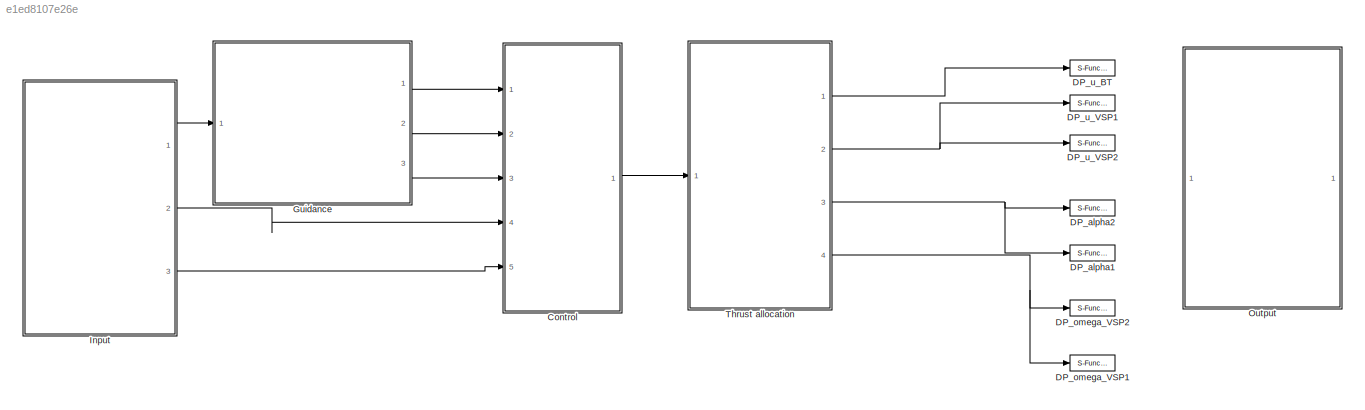
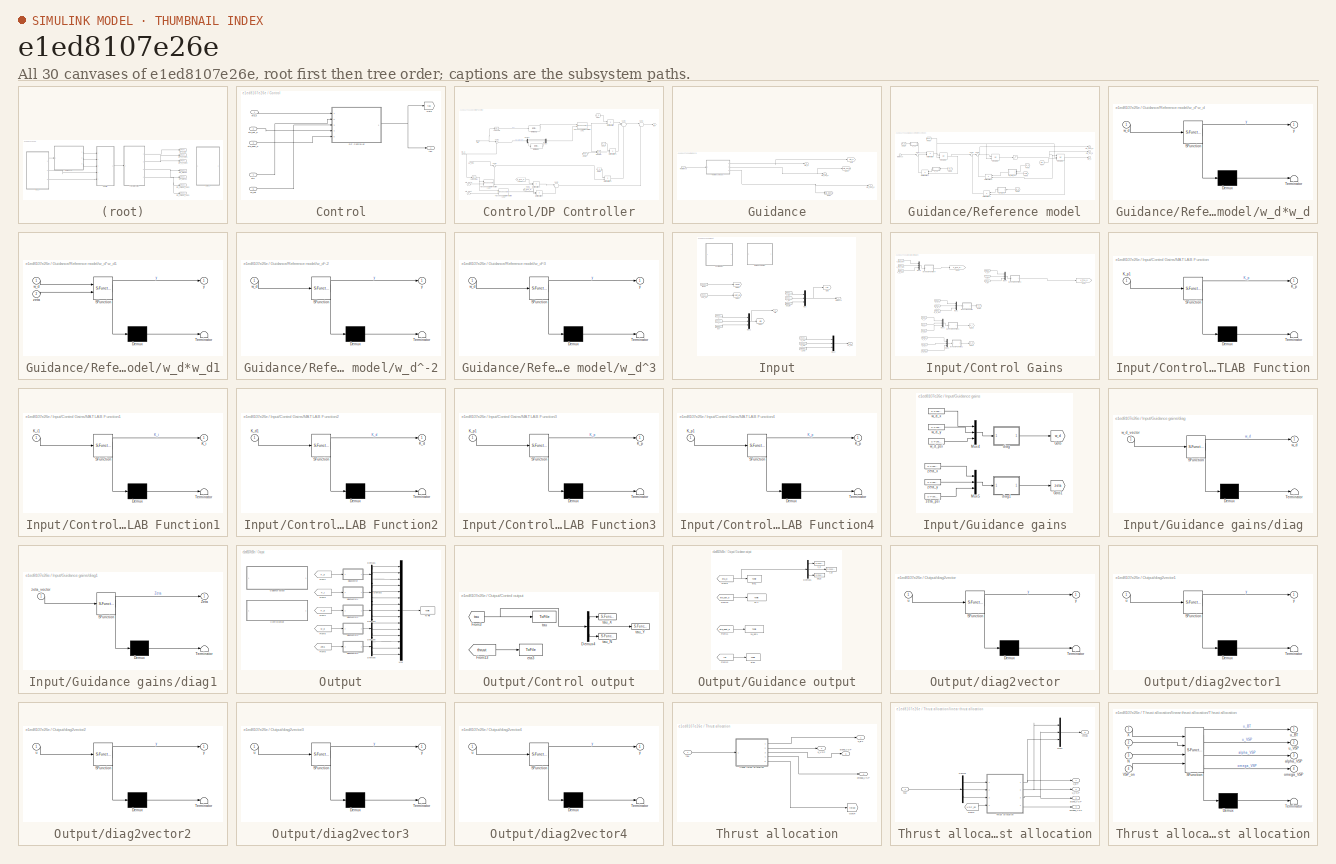
[diagram: thumbnail index - all 30 canvases of the model, root first then tree order]
MODEL slx_e1ed8107e26e
KIND model
BLOCK [SubSystem] Control
  Ports = [5, 1]
  RequestExecContextInheritance = off
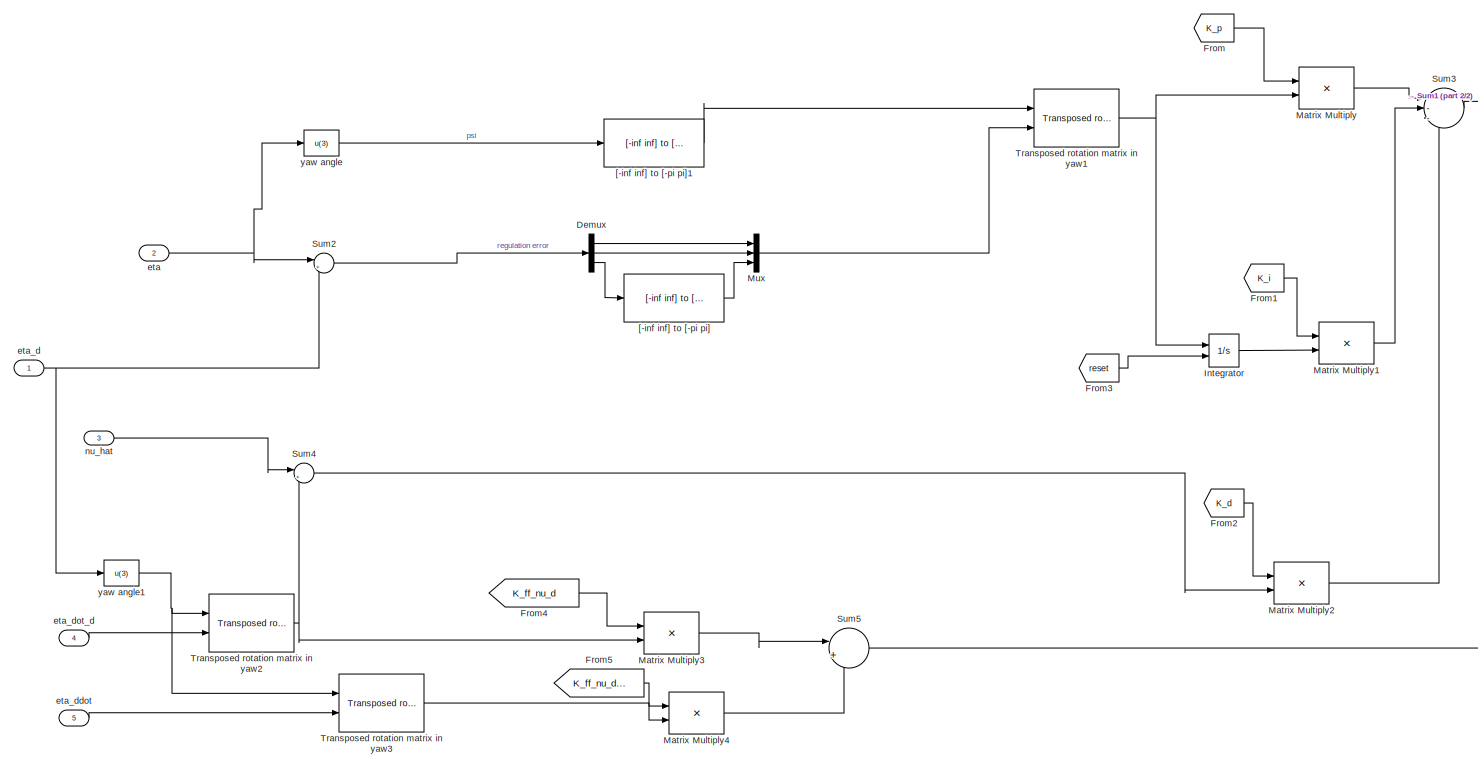
[diagram: Control/DP Controller - part 1/2, most of the canvas]
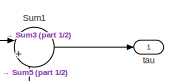
[diagram: Control/DP Controller - part 2/2, top right region]
BLOCK [SubSystem] Control/DP Controller
  Ports = [5, 1]
  RequestExecContextInheritance = off
BLOCK [Demux] Control/DP Controller/Demux
  DisplayOption = bar
  Outputs = 3
  Ports = [1, 3]
BLOCK [From] Control/DP Controller/From
  GotoTag = K_p
  TagVisibility = global
BLOCK [From] Control/DP Controller/From1
  GotoTag = K_i
  TagVisibility = global
BLOCK [From] Control/DP Controller/From2
  GotoTag = K_d
  TagVisibility = global
BLOCK [From] Control/DP Controller/From3
  GotoTag = reset
  TagVisibility = global
BLOCK [From] Control/DP Controller/From4
  GotoTag = K_ff_nu_d
  TagVisibility = global
BLOCK [From] Control/DP Controller/From5
  GotoTag = K_ff_nu_d_dot
  TagVisibility = global
BLOCK [Integrator] Control/DP Controller/Integrator
  ExternalReset = either
  Ports = [2, 1]
BLOCK [Product] Control/DP Controller/Matrix Multiply
  InputSameDT = off
  Multiplication = Matrix(*)
  OutDataTypeStr = Inherit: Inherit via internal rule
  Ports = [2, 1]
  RndMeth = Floor
  SaturateOnIntegerOverflow = off
BLOCK [Product] Control/DP Controller/Matrix Multiply1
  InputSameDT = off
  Multiplication = Matrix(*)
  OutDataTypeStr = Inherit: Inherit via internal rule
  Ports = [2, 1]
  RndMeth = Floor
  SaturateOnIntegerOverflow = off
BLOCK [Product] Control/DP Controller/Matrix Multiply2
  InputSameDT = off
  Multiplication = Matrix(*)
  OutDataTypeStr = Inherit: Inherit via internal rule
  Ports = [2, 1]
  RndMeth = Floor
  SaturateOnIntegerOverflow = off
BLOCK [Product] Control/DP Controller/Matrix Multiply3
  InputSameDT = off
  Multiplication = Matrix(*)
  OutDataTypeStr = Inherit: Inherit via internal rule
  Ports = [2, 1]
  RndMeth = Floor
  SaturateOnIntegerOverflow = off
BLOCK [Product] Control/DP Controller/Matrix Multiply4
  InputSameDT = off
  Multiplication = Matrix(*)
  OutDataTypeStr = Inherit: Inherit via internal rule
  Ports = [2, 1]
  RndMeth = Floor
  SaturateOnIntegerOverflow = off
BLOCK [Mux] Control/DP Controller/Mux
  DisplayOption = bar
  Inputs = 3
  Ports = [3, 1]
BLOCK [Sum] Control/DP Controller/Sum1
  IconShape = round
  Inputs = |++
  Ports = [2, 1]
BLOCK [Sum] Control/DP Controller/Sum2
  IconShape = round
  Inputs = |+-
  Ports = [2, 1]
BLOCK [Sum] Control/DP Controller/Sum3
  IconShape = round
  Inputs = |---
  Ports = [3, 1]
BLOCK [Sum] Control/DP Controller/Sum4
  IconShape = round
  Inputs = |+-
  Ports = [2, 1]
BLOCK [Sum] Control/DP Controller/Sum5
  IconShape = round
  Inputs = |++
  Ports = [2, 1]
BLOCK [Reference] Control/DP Controller/Transposed rotation matrix in yaw1  REF=marine_gnc/Models/ Kinematics/Transposed rotation  (lib defined in mdl_10d96c221ba8, mdl_45f1105420c6)
 matrix in yaw
  Ports = [2, 1]
  SourceBlock = marine_gnc/Models/ Kinematics/Transposed rotation\n matrix in yaw
BLOCK [Reference] Control/DP Controller/Transposed rotation matrix in yaw2  REF=marine_gnc/Models/ Kinematics/Transposed rotation  (lib defined in mdl_10d96c221ba8, mdl_45f1105420c6)
 matrix in yaw
  Ports = [2, 1]
  SourceBlock = marine_gnc/Models/ Kinematics/Transposed rotation\n matrix in yaw
BLOCK [Reference] Control/DP Controller/Transposed rotation matrix in yaw3  REF=marine_gnc/Models/ Kinematics/Transposed rotation  (lib defined in mdl_10d96c221ba8, mdl_45f1105420c6)
 matrix in yaw
  Ports = [2, 1]
  SourceBlock = marine_gnc/Models/ Kinematics/Transposed rotation\n matrix in yaw
BLOCK [Reference] Control/DP Controller/[-inf inf] to [-pi pi]  REF=marine_gnc/Utilities/Math Operations/[-inf inf] to [-pi pi]  (lib defined in mdl_10d96c221ba8, mdl_45f1105420c6)
  Ports = [1, 1]
  SourceBlock = marine_gnc/Utilities/Math Operations/[-inf inf] to [-pi pi]
  SourceType = [-inf inf] to [-pi pi]
BLOCK [Reference] Control/DP Controller/[-inf inf] to [-pi pi]1  REF=marine_gnc/Utilities/Math Operations/[-inf inf] to [-pi pi]  (lib defined in mdl_10d96c221ba8, mdl_45f1105420c6)
  Ports = [1, 1]
  SourceBlock = marine_gnc/Utilities/Math Operations/[-inf inf] to [-pi pi]
  SourceType = [-inf inf] to [-pi pi]
BLOCK [Inport] Control/DP Controller/eta
  IconDisplay = Port number
  Port = 2
BLOCK [Inport] Control/DP Controller/eta_d
  IconDisplay = Port number
BLOCK [Inport] Control/DP Controller/eta_ddot
  IconDisplay = Port number
  Port = 5
BLOCK [Inport] Control/DP Controller/eta_dot_d
  IconDisplay = Port number
  Port = 4
BLOCK [Inport] Control/DP Controller/nu_hat
  IconDisplay = Port number
  Port = 3
BLOCK [Outport] Control/DP Controller/tau
  IconDisplay = Port number
  InitialOutput = 0
BLOCK [Fcn] Control/DP Controller/yaw angle
  Expr = u(3)
BLOCK [Fcn] Control/DP Controller/yaw angle1
  Expr = u(3)
BLOCK [Goto] Control/Goto
  GotoTag = tau
  TagVisibility = global
BLOCK [Inport] Control/eta
  IconDisplay = Port number
  Port = 4
BLOCK [Inport] Control/eta_d
  IconDisplay = Port number
BLOCK [Inport] Control/eta_ddot_d
  IconDisplay = Port number
  Port = 3
BLOCK [Inport] Control/eta_dot_d
  IconDisplay = Port number
  Port = 2
BLOCK [Inport] Control/nu_hat
  IconDisplay = Port number
  Port = 5
BLOCK [Outport] Control/tau
  IconDisplay = Port number
BLOCK [S-Function] DP_alpha1
  CopyFcn = NIVeriStand_MDL_functions('', 'IO_copy');
  DeleteFcn = NIVeriStand_MDL_functions('', 'IO_delete');
  EnableBusSupport = off
  FunctionName = NIVeriStandIO
  MoveFcn = set_param(gcb, 'Mask', 'on');
  Parameters = width dtype portnum stime stype btype
  Ports = [1]
  Priority = 6
BLOCK [S-Function] DP_alpha2
  CopyFcn = NIVeriStand_MDL_functions('', 'IO_copy');
  DeleteFcn = NIVeriStand_MDL_functions('', 'IO_delete');
  EnableBusSupport = off
  FunctionName = NIVeriStandIO
  MoveFcn = set_param(gcb, 'Mask', 'on');
  Parameters = width dtype portnum stime stype btype
  Ports = [1]
  Priority = 1
BLOCK [S-Function] DP_omega_VSP1
  CopyFcn = NIVeriStand_MDL_functions('', 'IO_copy');
  DeleteFcn = NIVeriStand_MDL_functions('', 'IO_delete');
  EnableBusSupport = off
  FunctionName = NIVeriStandIO
  MoveFcn = set_param(gcb, 'Mask', 'on');
  Parameters = width dtype portnum stime stype btype
  Ports = [1]
  Priority = 7
BLOCK [S-Function] DP_omega_VSP2
  CopyFcn = NIVeriStand_MDL_functions('', 'IO_copy');
  DeleteFcn = NIVeriStand_MDL_functions('', 'IO_delete');
  EnableBusSupport = off
  FunctionName = NIVeriStandIO
  MoveFcn = set_param(gcb, 'Mask', 'on');
  Parameters = width dtype portnum stime stype btype
  Ports = [1]
  Priority = 4
BLOCK [S-Function] DP_u_BT
  CopyFcn = NIVeriStand_MDL_functions('', 'IO_copy');
  DeleteFcn = NIVeriStand_MDL_functions('', 'IO_delete');
  EnableBusSupport = off
  FunctionName = NIVeriStandIO
  MoveFcn = set_param(gcb, 'Mask', 'on');
  Parameters = width dtype portnum stime stype btype
  Ports = [1]
  Priority = 2
BLOCK [S-Function] DP_u_VSP1
  CopyFcn = NIVeriStand_MDL_functions('', 'IO_copy');
  DeleteFcn = NIVeriStand_MDL_functions('', 'IO_delete');
  EnableBusSupport = off
  FunctionName = NIVeriStandIO
  MoveFcn = set_param(gcb, 'Mask', 'on');
  Parameters = width dtype portnum stime stype btype
  Ports = [1]
  Priority = 5
BLOCK [S-Function] DP_u_VSP2
  CopyFcn = NIVeriStand_MDL_functions('', 'IO_copy');
  DeleteFcn = NIVeriStand_MDL_functions('', 'IO_delete');
  EnableBusSupport = off
  FunctionName = NIVeriStandIO
  MoveFcn = set_param(gcb, 'Mask', 'on');
  Parameters = width dtype portnum stime stype btype
  Ports = [1]
  Priority = 3
BLOCK [SubSystem] Guidance
  Ports = [1, 3]
  RequestExecContextInheritance = off
BLOCK [Goto] Guidance/Goto
  GotoTag = eta_d
  TagVisibility = global
BLOCK [Goto] Guidance/Goto1
  GotoTag = eta_dot_d
  TagVisibility = global
BLOCK [Goto] Guidance/Goto2
  GotoTag = eta_ddot_d
  TagVisibility = global
BLOCK [Inport] Guidance/Reference 
  IconDisplay = Port number
BLOCK [SubSystem] Guidance/Reference model
  Ports = [1, 3]
  RequestExecContextInheritance = off
BLOCK [Saturate] Guidance/Reference model/       
  Commented = through
  InputPortMap = u0
  LowerLimit = -[0.3 0.1 1]
  Ports = [1, 1]
  UpperLimit = [0.3 0.1 1]
BLOCK [From] Guidance/Reference model/From
  GotoTag = eta
  TagVisibility = global
BLOCK [From] Guidance/Reference model/From1
  GotoTag = reset
  TagVisibility = global
BLOCK [From] Guidance/Reference model/From2
  GotoTag = w_d
  TagVisibility = global
BLOCK [From] Guidance/Reference model/From3
  GotoTag = w_d
  TagVisibility = global
BLOCK [From] Guidance/Reference model/From4
  GotoTag = w_d
  TagVisibility = global
BLOCK [From] Guidance/Reference model/From5
  GotoTag = w_d
  TagVisibility = global
BLOCK [From] Guidance/Reference model/From6
  GotoTag = zeta
  TagVisibility = global
BLOCK [Integrator] Guidance/Reference model/Integrator1
  ExternalReset = either
  InitialConditionSource = external
  Ports = [3, 1]
BLOCK [Integrator] Guidance/Reference model/Integrator2
  ExternalReset = either
  Ports = [2, 1]
BLOCK [Integrator] Guidance/Reference model/Integrator3
  ExternalReset = either
  Ports = [2, 1]
BLOCK [Product] Guidance/Reference model/Matrix Multiply
  InputSameDT = off
  Multiplication = Matrix(*)
  OutDataTypeStr = Inherit: Inherit via internal rule
  Ports = [2, 1]
  RndMeth = Floor
  SaturateOnIntegerOverflow = off
BLOCK [Product] Guidance/Reference model/Matrix Multiply1
  InputSameDT = off
  Multiplication = Matrix(*)
  OutDataTypeStr = Inherit: Inherit via internal rule
  Ports = [2, 1]
  RndMeth = Floor
  SaturateOnIntegerOverflow = off
BLOCK [Product] Guidance/Reference model/Matrix Multiply2
  InputSameDT = off
  Multiplication = Matrix(*)
  OutDataTypeStr = Inherit: Inherit via internal rule
  Ports = [2, 1]
  RndMeth = Floor
  SaturateOnIntegerOverflow = off
BLOCK [Product] Guidance/Reference model/Matrix Multiply5
  InputSameDT = off
  Multiplication = Matrix(*)
  OutDataTypeStr = Inherit: Inherit via internal rule
  Ports = [2, 1]
  RndMeth = Floor
  SaturateOnIntegerOverflow = off
BLOCK [Sum] Guidance/Reference model/Sum
  IconShape = round
  InputSameDT = off
  Inputs = |+-
  OutDataTypeStr = Inherit: Inherit via internal rule
  Ports = [2, 1]
  SaturateOnIntegerOverflow = off
BLOCK [Sum] Guidance/Reference model/Sum2
  IconShape = round
  Inputs = |+-
  Ports = [2, 1]
BLOCK [Sum] Guidance/Reference model/Sum5
  IconShape = round
  Inputs = |+-
  Ports = [2, 1]
BLOCK [Outport] Guidance/Reference model/eta_d
  IconDisplay = Port number
  InitialOutput = 0
BLOCK [Outport] Guidance/Reference model/eta_ddot_d
  IconDisplay = Port number
  InitialOutput = 0
  Port = 3
BLOCK [Outport] Guidance/Reference model/eta_dot_d
  IconDisplay = Port number
  InitialOutput = 0
  Port = 2
BLOCK [Inport] Guidance/Reference model/reference
  IconDisplay = Port number
BLOCK [SubSystem] Guidance/Reference model/w_d*w_d
  ErrorFcn = Stateflow.Translate.translate
  PermitHierarchicalResolution = ExplicitOnly
  Ports = [1, 1]
  RequestExecContextInheritance = off
  SFBlockType = MATLAB Function
  TreatAsAtomicUnit = on
BLOCK [Demux] Guidance/Reference model/w_d*w_d/ Demux 
  Outputs = 1
  Ports = [1, 1]
BLOCK [S-Function] Guidance/Reference model/w_d*w_d/ SFunction 
  EnableBusSupport = on
  FunctionName = sf_sfun
  PortCounts = [1 2]
  Ports = [1, 2]
  Tag = Stateflow S-Function ctrl_DP 3
BLOCK [Terminator] Guidance/Reference model/w_d*w_d/ Terminator 
BLOCK [Inport] Guidance/Reference model/w_d*w_d/w_d
  IconDisplay = Port number
BLOCK [Outport] Guidance/Reference model/w_d*w_d/y
  IconDisplay = Port number
BLOCK [SubSystem] Guidance/Reference model/w_d*w_d1
  ErrorFcn = Stateflow.Translate.translate
  PermitHierarchicalResolution = ExplicitOnly
  Ports = [2, 1]
  RequestExecContextInheritance = off
  SFBlockType = MATLAB Function
  TreatAsAtomicUnit = on
BLOCK [Demux] Guidance/Reference model/w_d*w_d1/ Demux 
  Outputs = 1
  Ports = [1, 1]
BLOCK [S-Function] Guidance/Reference model/w_d*w_d1/ SFunction 
  EnableBusSupport = on
  FunctionName = sf_sfun
  PortCounts = [2 2]
  Ports = [2, 2]
  Tag = Stateflow S-Function ctrl_DP 4
BLOCK [Terminator] Guidance/Reference model/w_d*w_d1/ Terminator 
BLOCK [Inport] Guidance/Reference model/w_d*w_d1/w_d
  IconDisplay = Port number
BLOCK [Outport] Guidance/Reference model/w_d*w_d1/y
  IconDisplay = Port number
BLOCK [Inport] Guidance/Reference model/w_d*w_d1/zeta
  IconDisplay = Port number
  Port = 2
BLOCK [SubSystem] Guidance/Reference model/w_d^-2
  ErrorFcn = Stateflow.Translate.translate
  PermitHierarchicalResolution = ExplicitOnly
  Ports = [1, 1]
  RequestExecContextInheritance = off
  SFBlockType = MATLAB Function
  TreatAsAtomicUnit = on
BLOCK [Demux] Guidance/Reference model/w_d^-2/ Demux 
  Outputs = 1
  Ports = [1, 1]
BLOCK [S-Function] Guidance/Reference model/w_d^-2/ SFunction 
  EnableBusSupport = on
  FunctionName = sf_sfun
  PortCounts = [1 2]
  Ports = [1, 2]
  Tag = Stateflow S-Function ctrl_DP 2
BLOCK [Terminator] Guidance/Reference model/w_d^-2/ Terminator 
BLOCK [Inport] Guidance/Reference model/w_d^-2/w_d
  IconDisplay = Port number
BLOCK [Outport] Guidance/Reference model/w_d^-2/y
  IconDisplay = Port number
BLOCK [SubSystem] Guidance/Reference model/w_d^3
  ErrorFcn = Stateflow.Translate.translate
  PermitHierarchicalResolution = ExplicitOnly
  Ports = [1, 1]
  RequestExecContextInheritance = off
  SFBlockType = MATLAB Function
  TreatAsAtomicUnit = on
BLOCK [Demux] Guidance/Reference model/w_d^3/ Demux 
  Outputs = 1
  Ports = [1, 1]
BLOCK [S-Function] Guidance/Reference model/w_d^3/ SFunction 
  EnableBusSupport = on
  FunctionName = sf_sfun
  PortCounts = [1 2]
  Ports = [1, 2]
  Tag = Stateflow S-Function ctrl_DP 1
BLOCK [Terminator] Guidance/Reference model/w_d^3/ Terminator 
BLOCK [Inport] Guidance/Reference model/w_d^3/w_d
  IconDisplay = Port number
BLOCK [Outport] Guidance/Reference model/w_d^3/y
  IconDisplay = Port number
BLOCK [Outport] Guidance/eta_d
  IconDisplay = Port number
BLOCK [Outport] Guidance/eta_ddot_d
  IconDisplay = Port number
  Port = 3
BLOCK [Outport] Guidance/eta_dot_d
  IconDisplay = Port number
  Port = 2
BLOCK [SubSystem] Input
  Ports = [0, 3]
  RequestExecContextInheritance = off
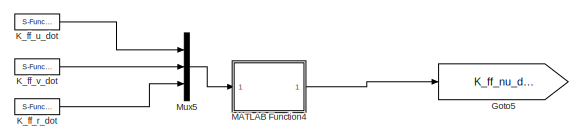
[diagram: Input/Control Gains - part 1/3, top left region]
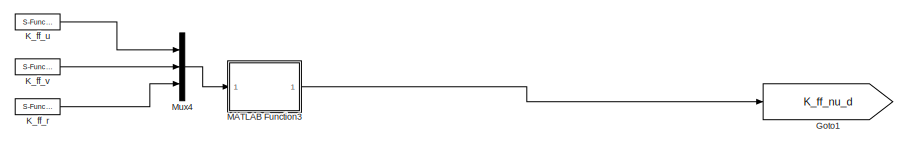
[diagram: Input/Control Gains - part 2/3, top right region]
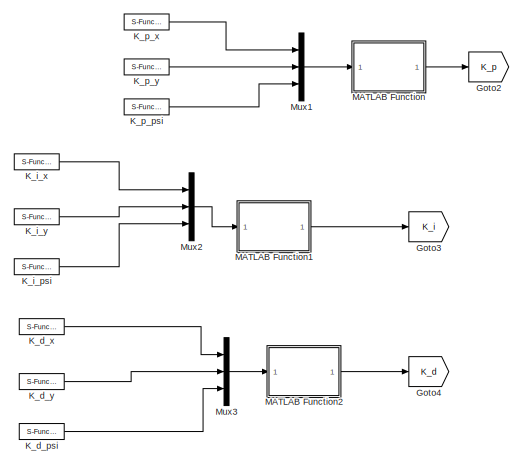
[diagram: Input/Control Gains - part 3/3, bottom left region]
BLOCK [SubSystem] Input/Control Gains
  Ports = []
  RequestExecContextInheritance = off
BLOCK [Goto] Input/Control Gains/Goto1
  GotoTag = K_ff_nu_d
  TagVisibility = global
BLOCK [Goto] Input/Control Gains/Goto2
  GotoTag = K_p
  TagVisibility = global
BLOCK [Goto] Input/Control Gains/Goto3
  GotoTag = K_i
  TagVisibility = global
BLOCK [Goto] Input/Control Gains/Goto4
  GotoTag = K_d
  TagVisibility = global
BLOCK [Goto] Input/Control Gains/Goto5
  GotoTag = K_ff_nu_d_dot
  TagVisibility = global
BLOCK [S-Function] Input/Control Gains/K_d_psi
  CopyFcn = NIVeriStand_MDL_functions('', 'IO_copy');
  DeleteFcn = NIVeriStand_MDL_functions('', 'IO_delete');
  EnableBusSupport = off
  FunctionName = NIVeriStandIO
  MoveFcn = set_param(gcb, 'Mask', 'on');
  Parameters = width dtype portnum stime stype btype
  Ports = [0, 1]
  Priority = 7
BLOCK [S-Function] Input/Control Gains/K_d_x
  CopyFcn = NIVeriStand_MDL_functions('', 'IO_copy');
  DeleteFcn = NIVeriStand_MDL_functions('', 'IO_delete');
  EnableBusSupport = off
  FunctionName = NIVeriStandIO
  MoveFcn = set_param(gcb, 'Mask', 'on');
  Parameters = width dtype portnum stime stype btype
  Ports = [0, 1]
  Priority = 8
BLOCK [S-Function] Input/Control Gains/K_d_y
  CopyFcn = NIVeriStand_MDL_functions('', 'IO_copy');
  DeleteFcn = NIVeriStand_MDL_functions('', 'IO_delete');
  EnableBusSupport = off
  FunctionName = NIVeriStandIO
  MoveFcn = set_param(gcb, 'Mask', 'on');
  Parameters = width dtype portnum stime stype btype
  Ports = [0, 1]
  Priority = 9
BLOCK [S-Function] Input/Control Gains/K_ff_r
  CopyFcn = NIVeriStand_MDL_functions('', 'IO_copy');
  DeleteFcn = NIVeriStand_MDL_functions('', 'IO_delete');
  EnableBusSupport = off
  FunctionName = NIVeriStandIO
  MoveFcn = set_param(gcb, 'Mask', 'on');
  Parameters = width dtype portnum stime stype btype
  Ports = [0, 1]
  Priority = 13
BLOCK [S-Function] Input/Control Gains/K_ff_r_dot
  CopyFcn = NIVeriStand_MDL_functions('', 'IO_copy');
  DeleteFcn = NIVeriStand_MDL_functions('', 'IO_delete');
  EnableBusSupport = off
  FunctionName = NIVeriStandIO
  MoveFcn = set_param(gcb, 'Mask', 'on');
  Parameters = width dtype portnum stime stype btype
  Ports = [0, 1]
  Priority = 10
BLOCK [S-Function] Input/Control Gains/K_ff_u
  CopyFcn = NIVeriStand_MDL_functions('', 'IO_copy');
  DeleteFcn = NIVeriStand_MDL_functions('', 'IO_delete');
  EnableBusSupport = off
  FunctionName = NIVeriStandIO
  MoveFcn = set_param(gcb, 'Mask', 'on');
  Parameters = width dtype portnum stime stype btype
  Ports = [0, 1]
  Priority = 14
BLOCK [S-Function] Input/Control Gains/K_ff_u_dot
  CopyFcn = NIVeriStand_MDL_functions('', 'IO_copy');
  DeleteFcn = NIVeriStand_MDL_functions('', 'IO_delete');
  EnableBusSupport = off
  FunctionName = NIVeriStandIO
  MoveFcn = set_param(gcb, 'Mask', 'on');
  Parameters = width dtype portnum stime stype btype
  Ports = [0, 1]
  Priority = 11
BLOCK [S-Function] Input/Control Gains/K_ff_v
  CopyFcn = NIVeriStand_MDL_functions('', 'IO_copy');
  DeleteFcn = NIVeriStand_MDL_functions('', 'IO_delete');
  EnableBusSupport = off
  FunctionName = NIVeriStandIO
  MoveFcn = set_param(gcb, 'Mask', 'on');
  Parameters = width dtype portnum stime stype btype
  Ports = [0, 1]
  Priority = 15
BLOCK [S-Function] Input/Control Gains/K_ff_v_dot
  CopyFcn = NIVeriStand_MDL_functions('', 'IO_copy');
  DeleteFcn = NIVeriStand_MDL_functions('', 'IO_delete');
  EnableBusSupport = off
  FunctionName = NIVeriStandIO
  MoveFcn = set_param(gcb, 'Mask', 'on');
  Parameters = width dtype portnum stime stype btype
  Ports = [0, 1]
  Priority = 12
BLOCK [S-Function] Input/Control Gains/K_i_psi
  CopyFcn = NIVeriStand_MDL_functions('', 'IO_copy');
  DeleteFcn = NIVeriStand_MDL_functions('', 'IO_delete');
  EnableBusSupport = off
  FunctionName = NIVeriStandIO
  MoveFcn = set_param(gcb, 'Mask', 'on');
  Parameters = width dtype portnum stime stype btype
  Ports = [0, 1]
  Priority = 4
BLOCK [S-Function] Input/Control Gains/K_i_x
  CopyFcn = NIVeriStand_MDL_functions('', 'IO_copy');
  DeleteFcn = NIVeriStand_MDL_functions('', 'IO_delete');
  EnableBusSupport = off
  FunctionName = NIVeriStandIO
  MoveFcn = set_param(gcb, 'Mask', 'on');
  Parameters = width dtype portnum stime stype btype
  Ports = [0, 1]
  Priority = 5
BLOCK [S-Function] Input/Control Gains/K_i_y
  CopyFcn = NIVeriStand_MDL_functions('', 'IO_copy');
  DeleteFcn = NIVeriStand_MDL_functions('', 'IO_delete');
  EnableBusSupport = off
  FunctionName = NIVeriStandIO
  MoveFcn = set_param(gcb, 'Mask', 'on');
  Parameters = width dtype portnum stime stype btype
  Ports = [0, 1]
  Priority = 6
BLOCK [S-Function] Input/Control Gains/K_p_psi
  CopyFcn = NIVeriStand_MDL_functions('', 'IO_copy');
  DeleteFcn = NIVeriStand_MDL_functions('', 'IO_delete');
  EnableBusSupport = off
  FunctionName = NIVeriStandIO
  MoveFcn = set_param(gcb, 'Mask', 'on');
  Parameters = width dtype portnum stime stype btype
  Ports = [0, 1]
  Priority = 3
BLOCK [S-Function] Input/Control Gains/K_p_x
  CopyFcn = NIVeriStand_MDL_functions('', 'IO_copy');
  DeleteFcn = NIVeriStand_MDL_functions('', 'IO_delete');
  EnableBusSupport = off
  FunctionName = NIVeriStandIO
  MoveFcn = set_param(gcb, 'Mask', 'on');
  Parameters = width dtype portnum stime stype btype
  Ports = [0, 1]
  Priority = 1
BLOCK [S-Function] Input/Control Gains/K_p_y
  CopyFcn = NIVeriStand_MDL_functions('', 'IO_copy');
  DeleteFcn = NIVeriStand_MDL_functions('', 'IO_delete');
  EnableBusSupport = off
  FunctionName = NIVeriStandIO
  MoveFcn = set_param(gcb, 'Mask', 'on');
  Parameters = width dtype portnum stime stype btype
  Ports = [0, 1]
  Priority = 2
BLOCK [SubSystem] Input/Control Gains/MATLAB Function
  ErrorFcn = Stateflow.Translate.translate
  PermitHierarchicalResolution = ExplicitOnly
  Ports = [1, 1]
  RequestExecContextInheritance = off
  SFBlockType = MATLAB Function
  TreatAsAtomicUnit = on
BLOCK [Demux] Input/Control Gains/MATLAB Function/ Demux 
  Outputs = 1
  Ports = [1, 1]
BLOCK [S-Function] Input/Control Gains/MATLAB Function/ SFunction 
  EnableBusSupport = on
  FunctionName = sf_sfun
  PortCounts = [1 2]
  Ports = [1, 2]
  Tag = Stateflow S-Function ctrl_DP 16
BLOCK [Terminator] Input/Control Gains/MATLAB Function/ Terminator 
BLOCK [Outport] Input/Control Gains/MATLAB Function/K_p
  IconDisplay = Port number
BLOCK [Inport] Input/Control Gains/MATLAB Function/K_p1
  IconDisplay = Port number
BLOCK [SubSystem] Input/Control Gains/MATLAB Function1
  ErrorFcn = Stateflow.Translate.translate
  PermitHierarchicalResolution = ExplicitOnly
  Ports = [1, 1]
  RequestExecContextInheritance = off
  SFBlockType = MATLAB Function
  TreatAsAtomicUnit = on
BLOCK [Demux] Input/Control Gains/MATLAB Function1/ Demux 
  Outputs = 1
  Ports = [1, 1]
BLOCK [S-Function] Input/Control Gains/MATLAB Function1/ SFunction 
  EnableBusSupport = on
  FunctionName = sf_sfun
  PortCounts = [1 2]
  Ports = [1, 2]
  Tag = Stateflow S-Function ctrl_DP 17
BLOCK [Terminator] Input/Control Gains/MATLAB Function1/ Terminator 
BLOCK [Outport] Input/Control Gains/MATLAB Function1/K_i
  IconDisplay = Port number
BLOCK [Inport] Input/Control Gains/MATLAB Function1/K_i1
  IconDisplay = Port number
BLOCK [SubSystem] Input/Control Gains/MATLAB Function2
  ErrorFcn = Stateflow.Translate.translate
  PermitHierarchicalResolution = ExplicitOnly
  Ports = [1, 1]
  RequestExecContextInheritance = off
  SFBlockType = MATLAB Function
  TreatAsAtomicUnit = on
BLOCK [Demux] Input/Control Gains/MATLAB Function2/ Demux 
  Outputs = 1
  Ports = [1, 1]
BLOCK [S-Function] Input/Control Gains/MATLAB Function2/ SFunction 
  EnableBusSupport = on
  FunctionName = sf_sfun
  PortCounts = [1 2]
  Ports = [1, 2]
  Tag = Stateflow S-Function ctrl_DP 18
BLOCK [Terminator] Input/Control Gains/MATLAB Function2/ Terminator 
BLOCK [Outport] Input/Control Gains/MATLAB Function2/K_d
  IconDisplay = Port number
BLOCK [Inport] Input/Control Gains/MATLAB Function2/K_d1
  IconDisplay = Port number
BLOCK [SubSystem] Input/Control Gains/MATLAB Function3
  ErrorFcn = Stateflow.Translate.translate
  PermitHierarchicalResolution = ExplicitOnly
  Ports = [1, 1]
  RequestExecContextInheritance = off
  SFBlockType = MATLAB Function
  TreatAsAtomicUnit = on
BLOCK [Demux] Input/Control Gains/MATLAB Function3/ Demux 
  Outputs = 1
  Ports = [1, 1]
BLOCK [S-Function] Input/Control Gains/MATLAB Function3/ SFunction 
  EnableBusSupport = on
  FunctionName = sf_sfun
  PortCounts = [1 2]
  Ports = [1, 2]
  Tag = Stateflow S-Function ctrl_DP 5
BLOCK [Terminator] Input/Control Gains/MATLAB Function3/ Terminator 
BLOCK [Outport] Input/Control Gains/MATLAB Function3/K_p
  IconDisplay = Port number
BLOCK [Inport] Input/Control Gains/MATLAB Function3/K_p1
  IconDisplay = Port number
BLOCK [SubSystem] Input/Control Gains/MATLAB Function4
  ErrorFcn = Stateflow.Translate.translate
  PermitHierarchicalResolution = ExplicitOnly
  Ports = [1, 1]
  RequestExecContextInheritance = off
  SFBlockType = MATLAB Function
  TreatAsAtomicUnit = on
BLOCK [Demux] Input/Control Gains/MATLAB Function4/ Demux 
  Outputs = 1
  Ports = [1, 1]
BLOCK [S-Function] Input/Control Gains/MATLAB Function4/ SFunction 
  EnableBusSupport = on
  FunctionName = sf_sfun
  PortCounts = [1 2]
  Ports = [1, 2]
  Tag = Stateflow S-Function ctrl_DP 6
BLOCK [Terminator] Input/Control Gains/MATLAB Function4/ Terminator 
BLOCK [Outport] Input/Control Gains/MATLAB Function4/K_p
  IconDisplay = Port number
BLOCK [Inport] Input/Control Gains/MATLAB Function4/K_p1
  IconDisplay = Port number
BLOCK [Mux] Input/Control Gains/Mux1
  DisplayOption = bar
  Inputs = 3
  Ports = [3, 1]
BLOCK [Mux] Input/Control Gains/Mux2
  DisplayOption = bar
  Inputs = 3
  Ports = [3, 1]
BLOCK [Mux] Input/Control Gains/Mux3
  DisplayOption = bar
  Inputs = 3
  Ports = [3, 1]
BLOCK [Mux] Input/Control Gains/Mux4
  DisplayOption = bar
  Inputs = 3
  Ports = [3, 1]
BLOCK [Mux] Input/Control Gains/Mux5
  DisplayOption = bar
  Inputs = 3
  Ports = [3, 1]
BLOCK [Goto] Input/Goto
  GotoTag = ref
  TagVisibility = global
BLOCK [Goto] Input/Goto1
  GotoTag = eta
  TagVisibility = global
BLOCK [Goto] Input/Goto3
  GotoTag = reset
  TagVisibility = global
BLOCK [Goto] Input/Goto4
  GotoTag = VSP_on
  TagVisibility = global
BLOCK [SubSystem] Input/Guidance gains
  Ports = []
  RequestExecContextInheritance = off
BLOCK [Goto] Input/Guidance gains/Goto
  GotoTag = w_d
  TagVisibility = global
BLOCK [Goto] Input/Guidance gains/Goto1
  GotoTag = zeta
  TagVisibility = global
BLOCK [Mux] Input/Guidance gains/Mux4
  DisplayOption = bar
  Inputs = 3
  Ports = [3, 1]
BLOCK [Mux] Input/Guidance gains/Mux5
  DisplayOption = bar
  Inputs = 3
  Ports = [3, 1]
BLOCK [SubSystem] Input/Guidance gains/diag
  ErrorFcn = Stateflow.Translate.translate
  PermitHierarchicalResolution = ExplicitOnly
  Ports = [1, 1]
  RequestExecContextInheritance = off
  SFBlockType = MATLAB Function
  TreatAsAtomicUnit = on
BLOCK [Demux] Input/Guidance gains/diag/ Demux 
  Outputs = 1
  Ports = [1, 1]
BLOCK [S-Function] Input/Guidance gains/diag/ SFunction 
  EnableBusSupport = on
  FunctionName = sf_sfun
  PortCounts = [1 2]
  Ports = [1, 2]
  Tag = Stateflow S-Function ctrl_DP 24
BLOCK [Terminator] Input/Guidance gains/diag/ Terminator 
BLOCK [Outport] Input/Guidance gains/diag/w_d
  IconDisplay = Port number
BLOCK [Inport] Input/Guidance gains/diag/w_d_vector
  IconDisplay = Port number
BLOCK [SubSystem] Input/Guidance gains/diag1
  ErrorFcn = Stateflow.Translate.translate
  PermitHierarchicalResolution = ExplicitOnly
  Ports = [1, 1]
  RequestExecContextInheritance = off
  SFBlockType = MATLAB Function
  TreatAsAtomicUnit = on
BLOCK [Demux] Input/Guidance gains/diag1/ Demux 
  Outputs = 1
  Ports = [1, 1]
BLOCK [S-Function] Input/Guidance gains/diag1/ SFunction 
  EnableBusSupport = on
  FunctionName = sf_sfun
  PortCounts = [1 2]
  Ports = [1, 2]
  Tag = Stateflow S-Function ctrl_DP 25
BLOCK [Terminator] Input/Guidance gains/diag1/ Terminator 
BLOCK [Outport] Input/Guidance gains/diag1/Zeta
  IconDisplay = Port number
BLOCK [Inport] Input/Guidance gains/diag1/zeta_vector
  IconDisplay = Port number
BLOCK [S-Function] Input/Guidance gains/w_d_psi
  CopyFcn = NIVeriStand_MDL_functions('', 'IO_copy');
  DeleteFcn = NIVeriStand_MDL_functions('', 'IO_delete');
  EnableBusSupport = off
  FunctionName = NIVeriStandIO
  MoveFcn = set_param(gcb, 'Mask', 'on');
  Parameters = width dtype portnum stime stype btype
  Ports = [0, 1]
  Priority = 3
BLOCK [S-Function] Input/Guidance gains/w_d_x
  CopyFcn = NIVeriStand_MDL_functions('', 'IO_copy');
  DeleteFcn = NIVeriStand_MDL_functions('', 'IO_delete');
  EnableBusSupport = off
  FunctionName = NIVeriStandIO
  MoveFcn = set_param(gcb, 'Mask', 'on');
  Parameters = width dtype portnum stime stype btype
  Ports = [0, 1]
  Priority = 1
BLOCK [S-Function] Input/Guidance gains/w_d_y
  CopyFcn = NIVeriStand_MDL_functions('', 'IO_copy');
  DeleteFcn = NIVeriStand_MDL_functions('', 'IO_delete');
  EnableBusSupport = off
  FunctionName = NIVeriStandIO
  MoveFcn = set_param(gcb, 'Mask', 'on');
  Parameters = width dtype portnum stime stype btype
  Ports = [0, 1]
  Priority = 2
BLOCK [S-Function] Input/Guidance gains/zeta_psi
  CopyFcn = NIVeriStand_MDL_functions('', 'IO_copy');
  DeleteFcn = NIVeriStand_MDL_functions('', 'IO_delete');
  EnableBusSupport = off
  FunctionName = NIVeriStandIO
  MoveFcn = set_param(gcb, 'Mask', 'on');
  Parameters = width dtype portnum stime stype btype
  Ports = [0, 1]
  Priority = 4
BLOCK [S-Function] Input/Guidance gains/zeta_x
  CopyFcn = NIVeriStand_MDL_functions('', 'IO_copy');
  DeleteFcn = NIVeriStand_MDL_functions('', 'IO_delete');
  EnableBusSupport = off
  FunctionName = NIVeriStandIO
  MoveFcn = set_param(gcb, 'Mask', 'on');
  Parameters = width dtype portnum stime stype btype
  Ports = [0, 1]
  Priority = 5
BLOCK [S-Function] Input/Guidance gains/zeta_y
  CopyFcn = NIVeriStand_MDL_functions('', 'IO_copy');
  DeleteFcn = NIVeriStand_MDL_functions('', 'IO_delete');
  EnableBusSupport = off
  FunctionName = NIVeriStandIO
  MoveFcn = set_param(gcb, 'Mask', 'on');
  Parameters = width dtype portnum stime stype btype
  Ports = [0, 1]
  Priority = 6
BLOCK [Mux] Input/Mux
  DisplayOption = bar
  Inputs = 3
  Ports = [3, 1]
BLOCK [Mux] Input/Mux1
  DisplayOption = bar
  Inputs = 3
  Ports = [3, 1]
BLOCK [Mux] Input/Mux2
  DisplayOption = bar
  Inputs = 3
  Ports = [3, 1]
BLOCK [S-Function] Input/VSP_on
  CopyFcn = NIVeriStand_MDL_functions('', 'IO_copy');
  DeleteFcn = NIVeriStand_MDL_functions('', 'IO_delete');
  EnableBusSupport = off
  FunctionName = NIVeriStandIO
  MoveFcn = set_param(gcb, 'Mask', 'on');
  Parameters = width dtype portnum stime stype btype
  Ports = [0, 1]
  Priority = 2
BLOCK [Outport] Input/eta
  IconDisplay = Port number
  Port = 2
BLOCK [Outport] Input/nu_hat
  IconDisplay = Port number
  Port = 3
BLOCK [S-Function] Input/psi
  CopyFcn = NIVeriStand_MDL_functions('', 'IO_copy');
  DeleteFcn = NIVeriStand_MDL_functions('', 'IO_delete');
  EnableBusSupport = off
  FunctionName = NIVeriStandIO
  MoveFcn = set_param(gcb, 'Mask', 'on');
  Parameters = width dtype portnum stime stype btype
  Ports = [0, 1]
  Priority = 8
BLOCK [S-Function] Input/psi_ref
  CopyFcn = NIVeriStand_MDL_functions('', 'IO_copy');
  DeleteFcn = NIVeriStand_MDL_functions('', 'IO_delete');
  EnableBusSupport = off
  FunctionName = NIVeriStandIO
  MoveFcn = set_param(gcb, 'Mask', 'on');
  Parameters = width dtype portnum stime stype btype
  Ports = [0, 1]
  Priority = 3
BLOCK [S-Function] Input/r_hat
  CopyFcn = NIVeriStand_MDL_functions('', 'IO_copy');
  DeleteFcn = NIVeriStand_MDL_functions('', 'IO_delete');
  EnableBusSupport = off
  FunctionName = NIVeriStandIO
  MoveFcn = set_param(gcb, 'Mask', 'on');
  Parameters = width dtype portnum stime stype btype
  Ports = [0, 1]
  Priority = 9
BLOCK [Outport] Input/reference
  IconDisplay = Port number
BLOCK [S-Function] Input/reset
  CopyFcn = NIVeriStand_MDL_functions('', 'IO_copy');
  DeleteFcn = NIVeriStand_MDL_functions('', 'IO_delete');
  EnableBusSupport = off
  FunctionName = NIVeriStandIO
  MoveFcn = set_param(gcb, 'Mask', 'on');
  Parameters = width dtype portnum stime stype btype
  Ports = [0, 1]
  Priority = 1
BLOCK [S-Function] Input/u_hat
  CopyFcn = NIVeriStand_MDL_functions('', 'IO_copy');
  DeleteFcn = NIVeriStand_MDL_functions('', 'IO_delete');
  EnableBusSupport = off
  FunctionName = NIVeriStandIO
  MoveFcn = set_param(gcb, 'Mask', 'on');
  Parameters = width dtype portnum stime stype btype
  Ports = [0, 1]
  Priority = 10
BLOCK [S-Function] Input/v_hat
  CopyFcn = NIVeriStand_MDL_functions('', 'IO_copy');
  DeleteFcn = NIVeriStand_MDL_functions('', 'IO_delete');
  EnableBusSupport = off
  FunctionName = NIVeriStandIO
  MoveFcn = set_param(gcb, 'Mask', 'on');
  Parameters = width dtype portnum stime stype btype
  Ports = [0, 1]
  Priority = 11
BLOCK [S-Function] Input/x
  CopyFcn = NIVeriStand_MDL_functions('', 'IO_copy');
  DeleteFcn = NIVeriStand_MDL_functions('', 'IO_delete');
  EnableBusSupport = off
  FunctionName = NIVeriStandIO
  MoveFcn = set_param(gcb, 'Mask', 'on');
  Parameters = width dtype portnum stime stype btype
  Ports = [0, 1]
  Priority = 6
BLOCK [S-Function] Input/x_ref
  CopyFcn = NIVeriStand_MDL_functions('', 'IO_copy');
  DeleteFcn = NIVeriStand_MDL_functions('', 'IO_delete');
  EnableBusSupport = off
  FunctionName = NIVeriStandIO
  MoveFcn = set_param(gcb, 'Mask', 'on');
  Parameters = width dtype portnum stime stype btype
  Ports = [0, 1]
  Priority = 4
BLOCK [S-Function] Input/y
  CopyFcn = NIVeriStand_MDL_functions('', 'IO_copy');
  DeleteFcn = NIVeriStand_MDL_functions('', 'IO_delete');
  EnableBusSupport = off
  FunctionName = NIVeriStandIO
  MoveFcn = set_param(gcb, 'Mask', 'on');
  Parameters = width dtype portnum stime stype btype
  Ports = [0, 1]
  Priority = 7
BLOCK [S-Function] Input/y_ref
  CopyFcn = NIVeriStand_MDL_functions('', 'IO_copy');
  DeleteFcn = NIVeriStand_MDL_functions('', 'IO_delete');
  EnableBusSupport = off
  FunctionName = NIVeriStandIO
  MoveFcn = set_param(gcb, 'Mask', 'on');
  Parameters = width dtype portnum stime stype btype
  Ports = [0, 1]
  Priority = 5
BLOCK [SubSystem] Output
  Ports = []
  RequestExecContextInheritance = off
BLOCK [SubSystem] Output/Control output
  Ports = []
  RequestExecContextInheritance = off
BLOCK [Demux] Output/Control output/Demux4
  DisplayOption = bar
  Outputs = 3
  Ports = [1, 3]
BLOCK [From] Output/Control output/From13
  GotoTag = thrust
  TagVisibility = global
BLOCK [From] Output/Control output/From3
  GotoTag = tau
  TagVisibility = global
BLOCK [ToFile] Output/Control output/eta3
  Commented = on
  Filename = thrust.mat
  MatrixName = thrust
  Ports = [1]
BLOCK [ToFile] Output/Control output/tau
  Commented = on
  Filename = tau.mat
  MatrixName = tau
  Ports = [1]
BLOCK [S-Function] Output/Control output/tau_N
  CopyFcn = NIVeriStand_MDL_functions('', 'IO_copy');
  DeleteFcn = NIVeriStand_MDL_functions('', 'IO_delete');
  EnableBusSupport = off
  FunctionName = NIVeriStandIO
  MoveFcn = set_param(gcb, 'Mask', 'on');
  Parameters = width dtype portnum stime stype btype
  Ports = [1]
  Priority = 1
BLOCK [S-Function] Output/Control output/tau_X
  CopyFcn = NIVeriStand_MDL_functions('', 'IO_copy');
  DeleteFcn = NIVeriStand_MDL_functions('', 'IO_delete');
  EnableBusSupport = off
  FunctionName = NIVeriStandIO
  MoveFcn = set_param(gcb, 'Mask', 'on');
  Parameters = width dtype portnum stime stype btype
  Ports = [1]
  Priority = 2
BLOCK [S-Function] Output/Control output/tau_Y
  CopyFcn = NIVeriStand_MDL_functions('', 'IO_copy');
  DeleteFcn = NIVeriStand_MDL_functions('', 'IO_delete');
  EnableBusSupport = off
  FunctionName = NIVeriStandIO
  MoveFcn = set_param(gcb, 'Mask', 'on');
  Parameters = width dtype portnum stime stype btype
  Ports = [1]
  Priority = 3
BLOCK [Demux] Output/Demux1
  Commented = on
  DisplayOption = bar
  Outputs = 3
  Ports = [1, 3]
BLOCK [Demux] Output/Demux2
  Commented = on
  DisplayOption = bar
  Outputs = 3
  Ports = [1, 3]
BLOCK [Demux] Output/Demux3
  Commented = on
  DisplayOption = bar
  Outputs = 3
  Ports = [1, 3]
BLOCK [Demux] Output/Demux5
  Commented = on
  DisplayOption = bar
  Outputs = 3
  Ports = [1, 3]
BLOCK [Demux] Output/Demux6
  Commented = on
  DisplayOption = bar
  Outputs = 3
  Ports = [1, 3]
BLOCK [From] Output/From1
  Commented = on
  GotoTag = K_p
  TagVisibility = global
BLOCK [From] Output/From2
  Commented = on
  GotoTag = K_i
  TagVisibility = global
BLOCK [From] Output/From4
  Commented = on
  GotoTag = K_d
  TagVisibility = global
BLOCK [From] Output/From5
  Commented = on
  GotoTag = w_d
  TagVisibility = global
BLOCK [From] Output/From6
  Commented = on
  GotoTag = zeta
  TagVisibility = global
BLOCK [SubSystem] Output/Guidance output
  Ports = []
  RequestExecContextInheritance = off
BLOCK [Demux] Output/Guidance output/Demux1
  DisplayOption = bar
  Outputs = 3
  Ports = [1, 3]
BLOCK [From] Output/Guidance output/From10
  Commented = on
  GotoTag = eta_dot_d
  TagVisibility = global
BLOCK [From] Output/Guidance output/From11
  Commented = on
  GotoTag = eta_ddot_d
  TagVisibility = global
BLOCK [From] Output/Guidance output/From12
  Commented = on
  GotoTag = ref
  TagVisibility = global
BLOCK [From] Output/Guidance output/From9
  GotoTag = eta_d
  TagVisibility = global
BLOCK [ToFile] Output/Guidance output/eta1
  Commented = on
  Filename = eta_d.mat
  MatrixName = eta_d
  Ports = [1]
BLOCK [ToFile] Output/Guidance output/eta2
  Commented = on
  Filename = ref.mat
  MatrixName = ref
  Ports = [1]
BLOCK [ToFile] Output/Guidance output/nu 1
  Commented = on
  Filename = eta_dot_d.mat
  MatrixName = eta_dot_d
  Ports = [1]
BLOCK [ToFile] Output/Guidance output/nu_dot1
  Commented = on
  Filename = eta_ddot_d.mat
  MatrixName = eta_ddot_d
  Ports = [1]
BLOCK [S-Function] Output/Guidance output/psi_d
  CopyFcn = NIVeriStand_MDL_functions('', 'IO_copy');
  DeleteFcn = NIVeriStand_MDL_functions('', 'IO_delete');
  EnableBusSupport = off
  FunctionName = NIVeriStandIO
  MoveFcn = set_param(gcb, 'Mask', 'on');
  Parameters = width dtype portnum stime stype btype
  Ports = [1]
  Priority = 3
BLOCK [S-Function] Output/Guidance output/x_d
  CopyFcn = NIVeriStand_MDL_functions('', 'IO_copy');
  DeleteFcn = NIVeriStand_MDL_functions('', 'IO_delete');
  EnableBusSupport = off
  FunctionName = NIVeriStandIO
  MoveFcn = set_param(gcb, 'Mask', 'on');
  Parameters = width dtype portnum stime stype btype
  Ports = [1]
  Priority = 1
BLOCK [S-Function] Output/Guidance output/y_d
  CopyFcn = NIVeriStand_MDL_functions('', 'IO_copy');
  DeleteFcn = NIVeriStand_MDL_functions('', 'IO_delete');
  EnableBusSupport = off
  FunctionName = NIVeriStandIO
  MoveFcn = set_param(gcb, 'Mask', 'on');
  Parameters = width dtype portnum stime stype btype
  Ports = [1]
  Priority = 2
BLOCK [Mux] Output/Mux
  Commented = on
  DisplayOption = bar
  Inputs = 15
  Ports = [15, 1]
BLOCK [ToFile] Output/To File
  Commented = on
  Filename = gains.mat
  Ports = [1]
BLOCK [SubSystem] Output/diag2vector
  Commented = on
  ErrorFcn = Stateflow.Translate.translate
  PermitHierarchicalResolution = ExplicitOnly
  Ports = [1, 1]
  RequestExecContextInheritance = off
  SFBlockType = MATLAB Function
  TreatAsAtomicUnit = on
BLOCK [Demux] Output/diag2vector/ Demux 
  Outputs = 1
  Ports = [1, 1]
BLOCK [S-Function] Output/diag2vector/ SFunction 
  EnableBusSupport = on
  FunctionName = sf_sfun
  PortCounts = [1 2]
  Ports = [1, 2]
  Tag = Stateflow S-Function ctrl_DP 22
BLOCK [Terminator] Output/diag2vector/ Terminator 
BLOCK [Inport] Output/diag2vector/u
  IconDisplay = Port number
BLOCK [Outport] Output/diag2vector/y
  IconDisplay = Port number
BLOCK [SubSystem] Output/diag2vector1
  Commented = on
  ErrorFcn = Stateflow.Translate.translate
  PermitHierarchicalResolution = ExplicitOnly
  Ports = [1, 1]
  RequestExecContextInheritance = off
  SFBlockType = MATLAB Function
  TreatAsAtomicUnit = on
BLOCK [Demux] Output/diag2vector1/ Demux 
  Outputs = 1
  Ports = [1, 1]
BLOCK [S-Function] Output/diag2vector1/ SFunction 
  EnableBusSupport = on
  FunctionName = sf_sfun
  PortCounts = [1 2]
  Ports = [1, 2]
  Tag = Stateflow S-Function ctrl_DP 23
BLOCK [Terminator] Output/diag2vector1/ Terminator 
BLOCK [Inport] Output/diag2vector1/u
  IconDisplay = Port number
BLOCK [Outport] Output/diag2vector1/y
  IconDisplay = Port number
BLOCK [SubSystem] Output/diag2vector2
  Commented = on
  ErrorFcn = Stateflow.Translate.translate
  PermitHierarchicalResolution = ExplicitOnly
  Ports = [1, 1]
  RequestExecContextInheritance = off
  SFBlockType = MATLAB Function
  TreatAsAtomicUnit = on
BLOCK [Demux] Output/diag2vector2/ Demux 
  Outputs = 1
  Ports = [1, 1]
BLOCK [S-Function] Output/diag2vector2/ SFunction 
  EnableBusSupport = on
  FunctionName = sf_sfun
  PortCounts = [1 2]
  Ports = [1, 2]
  Tag = Stateflow S-Function ctrl_DP 26
BLOCK [Terminator] Output/diag2vector2/ Terminator 
BLOCK [Inport] Output/diag2vector2/u
  IconDisplay = Port number
BLOCK [Outport] Output/diag2vector2/y
  IconDisplay = Port number
BLOCK [SubSystem] Output/diag2vector3
  Commented = on
  ErrorFcn = Stateflow.Translate.translate
  PermitHierarchicalResolution = ExplicitOnly
  Ports = [1, 1]
  RequestExecContextInheritance = off
  SFBlockType = MATLAB Function
  TreatAsAtomicUnit = on
BLOCK [Demux] Output/diag2vector3/ Demux 
  Outputs = 1
  Ports = [1, 1]
BLOCK [S-Function] Output/diag2vector3/ SFunction 
  EnableBusSupport = on
  FunctionName = sf_sfun
  PortCounts = [1 2]
  Ports = [1, 2]
  Tag = Stateflow S-Function ctrl_DP 27
BLOCK [Terminator] Output/diag2vector3/ Terminator 
BLOCK [Inport] Output/diag2vector3/u
  IconDisplay = Port number
BLOCK [Outport] Output/diag2vector3/y
  IconDisplay = Port number
BLOCK [SubSystem] Output/diag2vector4
  Commented = on
  ErrorFcn = Stateflow.Translate.translate
  PermitHierarchicalResolution = ExplicitOnly
  Ports = [1, 1]
  RequestExecContextInheritance = off
  SFBlockType = MATLAB Function
  TreatAsAtomicUnit = on
BLOCK [Demux] Output/diag2vector4/ Demux 
  Outputs = 1
  Ports = [1, 1]
BLOCK [S-Function] Output/diag2vector4/ SFunction 
  EnableBusSupport = on
  FunctionName = sf_sfun
  PortCounts = [1 2]
  Ports = [1, 2]
  Tag = Stateflow S-Function ctrl_DP 28
BLOCK [Terminator] Output/diag2vector4/ Terminator 
BLOCK [Inport] Output/diag2vector4/u
  IconDisplay = Port number
BLOCK [Outport] Output/diag2vector4/y
  IconDisplay = Port number
BLOCK [SubSystem] Thrust allocation
  Ports = [1, 4]
  RequestExecContextInheritance = off
BLOCK [Goto] Thrust allocation/Goto4
  GotoTag = thrust
  TagVisibility = global
BLOCK [Outport] Thrust allocation/alpha_VSP
  IconDisplay = Port number
  Port = 3
BLOCK [SubSystem] Thrust allocation/linear thrust allocation
  Ports = [1, 5]
  RequestExecContextInheritance = off
BLOCK [Demux] Thrust allocation/linear thrust allocation/Demux
  DisplayOption = bar
  Outputs = 3
  Ports = [1, 3]
BLOCK [From] Thrust allocation/linear thrust allocation/From3
  GotoTag = VSP_on
  TagVisibility = global
BLOCK [Mux] Thrust allocation/linear thrust allocation/Mux1
  DisplayOption = bar
  Inputs = 3
  Ports = [3, 1]
BLOCK [SubSystem] Thrust allocation/linear thrust allocation/Thrust allocation
  ErrorFcn = Stateflow.Translate.translate
  PermitHierarchicalResolution = ExplicitOnly
  Ports = [4, 4]
  RequestExecContextInheritance = off
  SFBlockType = MATLAB Function
  TreatAsAtomicUnit = on
BLOCK [Demux] Thrust allocation/linear thrust allocation/Thrust allocation/ Demux 
  Outputs = 1
  Ports = [1, 1]
BLOCK [S-Function] Thrust allocation/linear thrust allocation/Thrust allocation/ SFunction 
  EnableBusSupport = on
  FunctionName = sf_sfun
  PortCounts = [4 5]
  Ports = [4, 5]
  Tag = Stateflow S-Function ctrl_DP 9
BLOCK [Terminator] Thrust allocation/linear thrust allocation/Thrust allocation/ Terminator 
BLOCK [Inport] Thrust allocation/linear thrust allocation/Thrust allocation/N
  IconDisplay = Port number
  Port = 3
BLOCK [Inport] Thrust allocation/linear thrust allocation/Thrust allocation/VSP_on
  IconDisplay = Port number
  Port = 4
BLOCK [Inport] Thrust allocation/linear thrust allocation/Thrust allocation/X
  IconDisplay = Port number
BLOCK [Inport] Thrust allocation/linear thrust allocation/Thrust allocation/Y
  IconDisplay = Port number
  Port = 2
BLOCK [Outport] Thrust allocation/linear thrust allocation/Thrust allocation/alpha_VSP
  IconDisplay = Port number
  Port = 3
BLOCK [Outport] Thrust allocation/linear thrust allocation/Thrust allocation/omega_VSP
  IconDisplay = Port number
  Port = 4
BLOCK [Outport] Thrust allocation/linear thrust allocation/Thrust allocation/u_BT
  IconDisplay = Port number
BLOCK [Outport] Thrust allocation/linear thrust allocation/Thrust allocation/u_VSP
  IconDisplay = Port number
  Port = 2
BLOCK [Outport] Thrust allocation/linear thrust allocation/alpha_VSP
  IconDisplay = Port number
  Port = 3
BLOCK [Outport] Thrust allocation/linear thrust allocation/omega_VSP
  IconDisplay = Port number
  Port = 4
BLOCK [Inport] Thrust allocation/linear thrust allocation/tau
  IconDisplay = Port number
BLOCK [Outport] Thrust allocation/linear thrust allocation/thrust
  IconDisplay = Port number
  Port = 5
BLOCK [Outport] Thrust allocation/linear thrust allocation/u_BT
  IconDisplay = Port number
BLOCK [Outport] Thrust allocation/linear thrust allocation/u_VSP
  IconDisplay = Port number
  Port = 2
BLOCK [Outport] Thrust allocation/omega_VSP
  IconDisplay = Port number
  Port = 4
BLOCK [Inport] Thrust allocation/tau
  IconDisplay = Port number
BLOCK [Outport] Thrust allocation/u_BT
  IconDisplay = Port number
BLOCK [Outport] Thrust allocation/u_VSP
  IconDisplay = Port number
  Port = 2
LINE Control/DP Controller/Demux:1 -> Control/DP Controller/Mux:1
LINE Control/DP Controller/Demux:2 -> Control/DP Controller/Mux:2
LINE Control/DP Controller/Demux:3 -> Control/DP Controller/[-inf inf] to [-pi pi]:1
LINE Control/DP Controller/From1:1 -> Control/DP Controller/Matrix Multiply1:1
LINE Control/DP Controller/From2:1 -> Control/DP Controller/Matrix Multiply2:1
LINE Control/DP Controller/From3:1 -> Control/DP Controller/Integrator:2
LINE Control/DP Controller/From4:1 -> Control/DP Controller/Matrix Multiply3:1
LINE Control/DP Controller/From5:1 -> Control/DP Controller/Matrix Multiply4:1
LINE Control/DP Controller/From:1 -> Control/DP Controller/Matrix Multiply:1
LINE Control/DP Controller/Integrator:1 -> Control/DP Controller/Matrix Multiply1:2
LINE Control/DP Controller/Matrix Multiply1:1 -> Control/DP Controller/Sum3:2
LINE Control/DP Controller/Matrix Multiply2:1 -> Control/DP Controller/Sum3:3
LINE Control/DP Controller/Matrix Multiply3:1 -> Control/DP Controller/Sum5:1
LINE Control/DP Controller/Matrix Multiply4:1 -> Control/DP Controller/Sum5:2
LINE Control/DP Controller/Matrix Multiply:1 -> Control/DP Controller/Sum3:1
LINE Control/DP Controller/Mux:1 -> Control/DP Controller/Transposed rotation matrix in yaw1:2
LINE Control/DP Controller/Sum1:1 -> Control/DP Controller/tau:1
LINE Control/DP Controller/Sum2:1 -> Control/DP Controller/Demux:1
LINE Control/DP Controller/Sum3:1 -> Control/DP Controller/Sum1:1
LINE Control/DP Controller/Sum4:1 -> Control/DP Controller/Matrix Multiply2:2
LINE Control/DP Controller/Sum5:1 -> Control/DP Controller/Sum1:2
NET Control/DP Controller/Transposed rotation matrix in yaw1:1 -> Control/DP Controller/Integrator:1, Control/DP Controller/Matrix Multiply:2
NET Control/DP Controller/Transposed rotation matrix in yaw2:1 -> Control/DP Controller/Matrix Multiply3:2, Control/DP Controller/Sum4:2
LINE Control/DP Controller/Transposed rotation matrix in yaw3:1 -> Control/DP Controller/Matrix Multiply4:2
LINE Control/DP Controller/[-inf inf] to [-pi pi]1:1 -> Control/DP Controller/Transposed rotation matrix in yaw1:1
LINE Control/DP Controller/[-inf inf] to [-pi pi]:1 -> Control/DP Controller/Mux:3
NET Control/DP Controller/eta:1 -> Control/DP Controller/Sum2:1, Control/DP Controller/yaw angle:1
NET Control/DP Controller/eta_d:1 -> Control/DP Controller/Sum2:2, Control/DP Controller/yaw angle1:1
LINE Control/DP Controller/eta_ddot:1 -> Control/DP Controller/Transposed rotation matrix in yaw3:2
LINE Control/DP Controller/eta_dot_d:1 -> Control/DP Controller/Transposed rotation matrix in yaw2:2
LINE Control/DP Controller/nu_hat:1 -> Control/DP Controller/Sum4:1
NET Control/DP Controller/yaw angle1:1 -> Control/DP Controller/Transposed rotation matrix in yaw2:1, Control/DP Controller/Transposed rotation matrix in yaw3:1
LINE Control/DP Controller/yaw angle:1 -> Control/DP Controller/[-inf inf] to [-pi pi]1:1
NET Control/DP Controller:1 -> Control/Goto:1, Control/tau:1
LINE Control/eta:1 -> Control/DP Controller:2
LINE Control/eta_d:1 -> Control/DP Controller:1
LINE Control/eta_ddot_d:1 -> Control/DP Controller:5
LINE Control/eta_dot_d:1 -> Control/DP Controller:4
LINE Control/nu_hat:1 -> Control/DP Controller:3
LINE Control:1 -> Thrust allocation:1
LINE Guidance/Reference :1 -> Guidance/Reference model:1
NET Guidance/Reference model/       :1 -> Guidance/Reference model/Integrator1:1, Guidance/Reference model/Matrix Multiply5:2, Guidance/Reference model/eta_dot_d:1
NET Guidance/Reference model/From1:1 -> Guidance/Reference model/Integrator1:2, Guidance/Reference model/Integrator2:2, Guidance/Reference model/Integrator3:2
LINE Guidance/Reference model/From2:1 -> Guidance/Reference model/w_d^3:1
LINE Guidance/Reference model/From3:1 -> Guidance/Reference model/w_d^-2:1
LINE Guidance/Reference model/From4:1 -> Guidance/Reference model/w_d*w_d:1
LINE Guidance/Reference model/From5:1 -> Guidance/Reference model/w_d*w_d1:1
LINE Guidance/Reference model/From6:1 -> Guidance/Reference model/w_d*w_d1:2
LINE Guidance/Reference model/From:1 -> Guidance/Reference model/Integrator1:3
NET Guidance/Reference model/Integrator1:1 -> Guidance/Reference model/Matrix Multiply2:2, Guidance/Reference model/eta_d:1
NET Guidance/Reference model/Integrator2:1 -> Guidance/Reference model/Matrix Multiply1:2, Guidance/Reference model/Sum2:1
LINE Guidance/Reference model/Integrator3:1 -> Guidance/Reference model/       :1
LINE Guidance/Reference model/Matrix Multiply1:1 -> Guidance/Reference model/Sum:2
LINE Guidance/Reference model/Matrix Multiply2:1 -> Guidance/Reference model/Sum2:2
LINE Guidance/Reference model/Matrix Multiply5:1 -> Guidance/Reference model/Sum5:2
LINE Guidance/Reference model/Matrix Multiply:1 -> Guidance/Reference model/Integrator2:1
LINE Guidance/Reference model/Sum2:1 -> Guidance/Reference model/Sum5:1
NET Guidance/Reference model/Sum5:1 -> Guidance/Reference model/Integrator3:1, Guidance/Reference model/eta_ddot_d:1
LINE Guidance/Reference model/Sum:1 -> Guidance/Reference model/Matrix Multiply:2
LINE Guidance/Reference model/reference:1 -> Guidance/Reference model/Sum:1
LINE Guidance/Reference model/w_d*w_d1:1 -> Guidance/Reference model/Matrix Multiply5:1
LINE Guidance/Reference model/w_d*w_d:1 -> Guidance/Reference model/Matrix Multiply2:1
LINE Guidance/Reference model/w_d^-2:1 -> Guidance/Reference model/Matrix Multiply1:1
LINE Guidance/Reference model/w_d^3:1 -> Guidance/Reference model/Matrix Multiply:1
NET Guidance/Reference model:1 -> Guidance/Goto:1, Guidance/eta_d:1
NET Guidance/Reference model:2 -> Guidance/Goto1:1, Guidance/eta_dot_d:1
NET Guidance/Reference model:3 -> Guidance/Goto2:1, Guidance/eta_ddot_d:1
LINE Guidance:1 -> Control:1
LINE Guidance:2 -> Control:2
LINE Guidance:3 -> Control:3
LINE Input/Control Gains/K_d_psi:1 -> Input/Control Gains/Mux3:3
LINE Input/Control Gains/K_d_x:1 -> Input/Control Gains/Mux3:1
LINE Input/Control Gains/K_d_y:1 -> Input/Control Gains/Mux3:2
LINE Input/Control Gains/K_ff_r:1 -> Input/Control Gains/Mux4:3
LINE Input/Control Gains/K_ff_r_dot:1 -> Input/Control Gains/Mux5:3
LINE Input/Control Gains/K_ff_u:1 -> Input/Control Gains/Mux4:1
LINE Input/Control Gains/K_ff_u_dot:1 -> Input/Control Gains/Mux5:1
LINE Input/Control Gains/K_ff_v:1 -> Input/Control Gains/Mux4:2
LINE Input/Control Gains/K_ff_v_dot:1 -> Input/Control Gains/Mux5:2
LINE Input/Control Gains/K_i_psi:1 -> Input/Control Gains/Mux2:3
LINE Input/Control Gains/K_i_x:1 -> Input/Control Gains/Mux2:1
LINE Input/Control Gains/K_i_y:1 -> Input/Control Gains/Mux2:2
LINE Input/Control Gains/K_p_psi:1 -> Input/Control Gains/Mux1:3
LINE Input/Control Gains/K_p_x:1 -> Input/Control Gains/Mux1:1
LINE Input/Control Gains/K_p_y:1 -> Input/Control Gains/Mux1:2
LINE Input/Control Gains/MATLAB Function1:1 -> Input/Control Gains/Goto3:1
LINE Input/Control Gains/MATLAB Function2:1 -> Input/Control Gains/Goto4:1
LINE Input/Control Gains/MATLAB Function3:1 -> Input/Control Gains/Goto1:1
LINE Input/Control Gains/MATLAB Function4:1 -> Input/Control Gains/Goto5:1
LINE Input/Control Gains/MATLAB Function:1 -> Input/Control Gains/Goto2:1
LINE Input/Control Gains/Mux1:1 -> Input/Control Gains/MATLAB Function:1
LINE Input/Control Gains/Mux2:1 -> Input/Control Gains/MATLAB Function1:1
LINE Input/Control Gains/Mux3:1 -> Input/Control Gains/MATLAB Function2:1
LINE Input/Control Gains/Mux4:1 -> Input/Control Gains/MATLAB Function3:1
LINE Input/Control Gains/Mux5:1 -> Input/Control Gains/MATLAB Function4:1
LINE Input/Guidance gains/Mux4:1 -> Input/Guidance gains/diag:1
LINE Input/Guidance gains/Mux5:1 -> Input/Guidance gains/diag1:1
LINE Input/Guidance gains/diag1:1 -> Input/Guidance gains/Goto1:1
LINE Input/Guidance gains/diag:1 -> Input/Guidance gains/Goto:1
LINE Input/Guidance gains/w_d_psi:1 -> Input/Guidance gains/Mux4:3
LINE Input/Guidance gains/w_d_x:1 -> Input/Guidance gains/Mux4:1
LINE Input/Guidance gains/w_d_y:1 -> Input/Guidance gains/Mux4:2
LINE Input/Guidance gains/zeta_psi:1 -> Input/Guidance gains/Mux5:3
LINE Input/Guidance gains/zeta_x:1 -> Input/Guidance gains/Mux5:1
LINE Input/Guidance gains/zeta_y:1 -> Input/Guidance gains/Mux5:2
NET Input/Mux1:1 -> Input/Goto1:1, Input/eta:1
LINE Input/Mux2:1 -> Input/nu_hat:1
NET Input/Mux:1 -> Input/Goto:1, Input/reference:1
LINE Input/VSP_on:1 -> Input/Goto4:1
LINE Input/psi:1 -> Input/Mux1:3
LINE Input/psi_ref:1 -> Input/Mux:3
LINE Input/r_hat:1 -> Input/Mux2:3
LINE Input/reset:1 -> Input/Goto3:1
LINE Input/u_hat:1 -> Input/Mux2:1
LINE Input/v_hat:1 -> Input/Mux2:2
LINE Input/x:1 -> Input/Mux1:1
LINE Input/x_ref:1 -> Input/Mux:1
LINE Input/y:1 -> Input/Mux1:2
LINE Input/y_ref:1 -> Input/Mux:2
LINE Input:1 -> Guidance:1
LINE Input:2 -> Control:4
LINE Input:3 -> Control:5
LINE Output/Control output/Demux4:1 -> Output/Control output/tau_X:1
LINE Output/Control output/Demux4:2 -> Output/Control output/tau_Y:1
LINE Output/Control output/Demux4:3 -> Output/Control output/tau_N:1
LINE Output/Control output/From13:1 -> Output/Control output/eta3:1
NET Output/Control output/From3:1 -> Output/Control output/Demux4:1, Output/Control output/tau:1
LINE Output/Demux1:1 -> Output/Mux:1
LINE Output/Demux1:2 -> Output/Mux:2
LINE Output/Demux1:3 -> Output/Mux:3
LINE Output/Demux2:1 -> Output/Mux:4
LINE Output/Demux2:2 -> Output/Mux:5
LINE Output/Demux2:3 -> Output/Mux:6
LINE Output/Demux3:1 -> Output/Mux:7
LINE Output/Demux3:2 -> Output/Mux:8
LINE Output/Demux3:3 -> Output/Mux:9
LINE Output/Demux5:1 -> Output/Mux:10
LINE Output/Demux5:2 -> Output/Mux:11
LINE Output/Demux5:3 -> Output/Mux:12
LINE Output/Demux6:1 -> Output/Mux:13
LINE Output/Demux6:2 -> Output/Mux:14
LINE Output/Demux6:3 -> Output/Mux:15
LINE Output/From1:1 -> Output/diag2vector:1
LINE Output/From2:1 -> Output/diag2vector1:1
LINE Output/From4:1 -> Output/diag2vector2:1
LINE Output/From5:1 -> Output/diag2vector3:1
LINE Output/From6:1 -> Output/diag2vector4:1
LINE Output/Guidance output/Demux1:1 -> Output/Guidance output/x_d:1
LINE Output/Guidance output/Demux1:2 -> Output/Guidance output/y_d:1
LINE Output/Guidance output/Demux1:3 -> Output/Guidance output/psi_d:1
LINE Output/Guidance output/From10:1 -> Output/Guidance output/nu 1:1
LINE Output/Guidance output/From11:1 -> Output/Guidance output/nu_dot1:1
LINE Output/Guidance output/From12:1 -> Output/Guidance output/eta2:1
NET Output/Guidance output/From9:1 -> Output/Guidance output/Demux1:1, Output/Guidance output/eta1:1
LINE Output/Mux:1 -> Output/To File:1
LINE Output/diag2vector1:1 -> Output/Demux2:1
LINE Output/diag2vector2:1 -> Output/Demux3:1
LINE Output/diag2vector3:1 -> Output/Demux5:1
LINE Output/diag2vector4:1 -> Output/Demux6:1
LINE Output/diag2vector:1 -> Output/Demux1:1
LINE Thrust allocation/linear thrust allocation/Demux:1 -> Thrust allocation/linear thrust allocation/Thrust allocation:1
LINE Thrust allocation/linear thrust allocation/Demux:2 -> Thrust allocation/linear thrust allocation/Thrust allocation:2
LINE Thrust allocation/linear thrust allocation/Demux:3 -> Thrust allocation/linear thrust allocation/Thrust allocation:3
LINE Thrust allocation/linear thrust allocation/From3:1 -> Thrust allocation/linear thrust allocation/Thrust allocation:4
LINE Thrust allocation/linear thrust allocation/Mux1:1 -> Thrust allocation/linear thrust allocation/thrust:1
NET Thrust allocation/linear thrust allocation/Thrust allocation:1 -> Thrust allocation/linear thrust allocation/Mux1:3, Thrust allocation/linear thrust allocation/u_BT:1
NET Thrust allocation/linear thrust allocation/Thrust allocation:2 -> Thrust allocation/linear thrust allocation/Mux1:1, Thrust allocation/linear thrust allocation/u_VSP:1
NET Thrust allocation/linear thrust allocation/Thrust allocation:3 -> Thrust allocation/linear thrust allocation/Mux1:2, Thrust allocation/linear thrust allocation/alpha_VSP:1
LINE Thrust allocation/linear thrust allocation/Thrust allocation:4 -> Thrust allocation/linear thrust allocation/omega_VSP:1
LINE Thrust allocation/linear thrust allocation/tau:1 -> Thrust allocation/linear thrust allocation/Demux:1
LINE Thrust allocation/linear thrust allocation:1 -> Thrust allocation/u_BT:1
LINE Thrust allocation/linear thrust allocation:2 -> Thrust allocation/u_VSP:1
LINE Thrust allocation/linear thrust allocation:3 -> Thrust allocation/alpha_VSP:1
LINE Thrust allocation/linear thrust allocation:4 -> Thrust allocation/omega_VSP:1
LINE Thrust allocation/linear thrust allocation:5 -> Thrust allocation/Goto4:1
LINE Thrust allocation/tau:1 -> Thrust allocation/linear thrust allocation:1
LINE Thrust allocation:1 -> DP_u_BT:1
NET Thrust allocation:2 -> DP_u_VSP1:1, DP_u_VSP2:1
NET Thrust allocation:3 -> DP_alpha1:1, DP_alpha2:1
NET Thrust allocation:4 -> DP_omega_VSP1:1, DP_omega_VSP2:1
note: NET lines group one-source signal fan-out (src -> all destinations, sorted); 1:1 wires keep LINE
